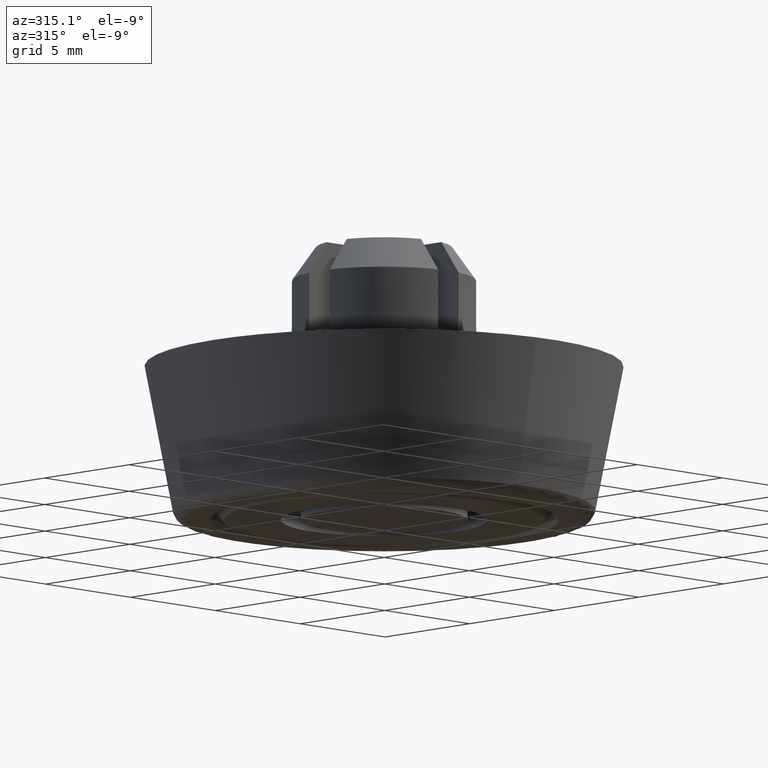
[diagram: clean part render]
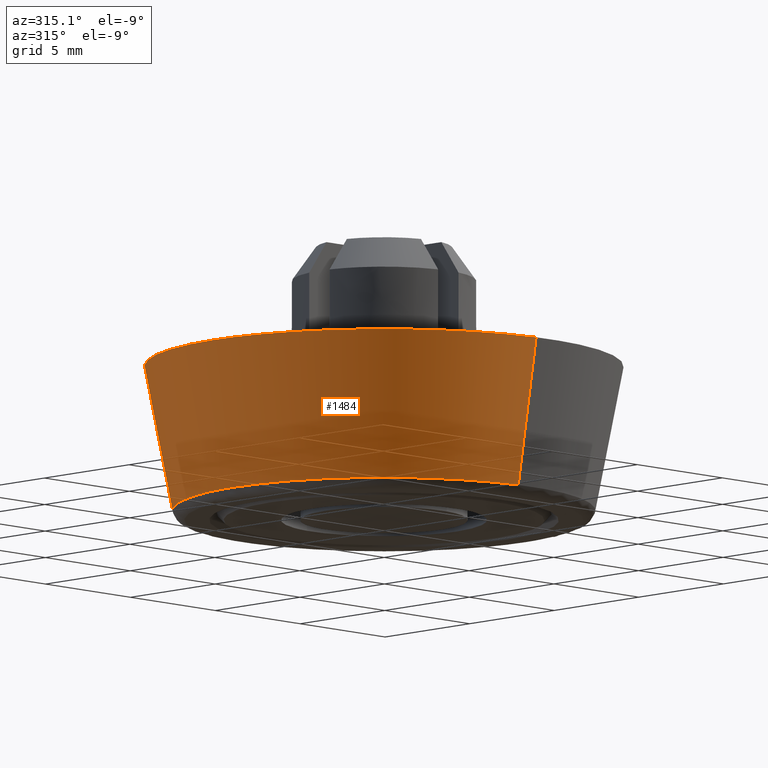
[diagram: same view with one face highlighted and labeled with its STEP entity id]
A machine part, auxiliary view. The second image highlights one B-rep face of the part: STEP entity #1484.
In plain terms, the highlighted face is a freeform B-spline surface patch.
Its self-contained STEP definition (entity closure, byte-faithful):
#1038=CARTESIAN_POINT('',(-8.627317969124565,1.871597676116212,-6.094423741713268));
#1039=VERTEX_POINT('',#1038);
#1053=CARTESIAN_POINT('',(0.846119025916015,8.787352501310256,-6.094427220944507));
#1054=VERTEX_POINT('',#1053);
#1055=CARTESIAN_POINT('',(0.846119025916015,8.787352501310256,-6.094427220944507));
#1056=CARTESIAN_POINT('',(0.424035555022685,8.827994209356424,-6.094427126929500));
#1057=CARTESIAN_POINT('',(-0.000000060517125,8.827994228803613,-6.094427025338519));
#1058=CARTESIAN_POINT('',(-7.118207421188021,8.827994555259972,-6.094425319949531));
#1059=CARTESIAN_POINT('',(-8.627317969124565,1.871597676116212,-6.094423741713268));
#1067=(BOUNDED_CURVE()B_SPLINE_CURVE(2,(#1055,#1056,#1057,#1058,#1059),.UNSPECIFIED.,.F.,.U.)B_SPLINE_CURVE_WITH_KNOTS((3,2,3),(0.466698070071439,0.500000000000000,0.927406517058512),.UNSPECIFIED.)CURVE()GEOMETRIC_REPRESENTATION_ITEM()RATIONAL_B_SPLINE_CURVE((0.963582954274223,0.980492181101048,1.0,0.749631058953771,0.927299386196329))REPRESENTATION_ITEM(''));
#1068=EDGE_CURVE('',#1054,#1039,#1067,.T.);
#1109=CARTESIAN_POINT('',(-0.846119025916016,-8.787352501310256,-6.094427220944506));
#1110=VERTEX_POINT('',#1109);
#1126=CARTESIAN_POINT('',(-8.827994857375360,0.0,-6.094423741647701));
#1127=VERTEX_POINT('',#1126);
#1128=CARTESIAN_POINT('',(-8.827994857375360,0.0,-6.094423741647701));
#1129=CARTESIAN_POINT('',(-8.827994825311265,-8.018791774752364,-6.094425481282729));
#1130=CARTESIAN_POINT('',(-0.846119025916016,-8.787352501310256,-6.094427220944506));
#1138=(BOUNDED_CURVE()B_SPLINE_CURVE(2,(#1128,#1129,#1130),.UNSPECIFIED.,.F.,.U.)B_SPLINE_CURVE_WITH_KNOTS((3,3),(0.0,0.466698070071439),.UNSPECIFIED.)CURVE()GEOMETRIC_REPRESENTATION_ITEM()RATIONAL_B_SPLINE_CURVE((1.0,0.726614600085500,0.963582954274223))REPRESENTATION_ITEM(''));
#1139=EDGE_CURVE('',#1127,#1110,#1138,.T.);
#1141=CARTESIAN_POINT('',(-8.627317969124565,1.871597676116212,-6.094423741713268));
#1142=CARTESIAN_POINT('',(-8.827994857369200,0.946557350420813,-6.094423741680484));
#1143=CARTESIAN_POINT('',(-8.827994857375360,0.0,-6.094423741647701));
#1151=(BOUNDED_CURVE()B_SPLINE_CURVE(2,(#1141,#1142,#1143),.UNSPECIFIED.,.F.,.U.)B_SPLINE_CURVE_WITH_KNOTS((3,3),(0.927406517058512,1.0),.UNSPECIFIED.)CURVE()GEOMETRIC_REPRESENTATION_ITEM()RATIONAL_B_SPLINE_CURVE((0.927299386196329,0.957475722232776,1.0))REPRESENTATION_ITEM(''));
#1152=EDGE_CURVE('',#1039,#1127,#1151,.T.);
#1382=CARTESIAN_POINT('',(0.958456098082454,9.953961979206898,-0.000000734382645));
#1383=VERTEX_POINT('',#1382);
#1384=CARTESIAN_POINT('',(0.846119025916015,8.787352501310256,-6.094427220944507));
#1385=CARTESIAN_POINT('',(0.958456098082454,9.953961979206898,-0.000000734382645));
#1386=QUASI_UNIFORM_CURVE('',1,(#1384,#1385),.UNSPECIFIED.,.F.,.U.);
#1387=EDGE_CURVE('',#1054,#1383,#1386,.T.);
#1404=CARTESIAN_POINT('',(-0.958456098082454,-9.953961979206898,-0.000000734382645));
#1405=VERTEX_POINT('',#1404);
#1421=CARTESIAN_POINT('',(-0.846119025916016,-8.787352501310256,-6.094427220944506));
#1422=CARTESIAN_POINT('',(-0.958456098082454,-9.953961979206898,-0.000000734382645));
#1423=QUASI_UNIFORM_CURVE('',1,(#1421,#1422),.UNSPECIFIED.,.F.,.U.);
#1424=EDGE_CURVE('',#1110,#1405,#1423,.T.);
#1429=CARTESIAN_POINT('',(0.843317517477260,8.758187283637703,-6.246784335256099));
#1430=CARTESIAN_POINT('',(-7.914869766160442,9.601504801114963,-6.246784335256099));
#1431=CARTESIAN_POINT('',(-8.758187283637703,0.843317517477260,-6.246784335256099));
#1432=CARTESIAN_POINT('',(-9.601504801114963,-7.914869766160442,-6.246784335256099));
#1433=CARTESIAN_POINT('',(-0.843317517477260,-8.758187283637703,-6.246784335256099));
#1434=CARTESIAN_POINT('',(0.961336025395364,9.983856351172637,0.156169608381403));
#1435=CARTESIAN_POINT('',(-9.022520325777274,10.945192376568000,0.156169608381403));
#1436=CARTESIAN_POINT('',(-9.983856351172637,0.961336025395364,0.156169608381403));
#1437=CARTESIAN_POINT('',(-10.945192376568000,-9.022520325777274,0.156169608381403));
#1438=CARTESIAN_POINT('',(-0.961336025395364,-9.983856351172637,0.156169608381403));
#1446=(BOUNDED_SURFACE()B_SPLINE_SURFACE(2,1,((#1429,#1434),(#1430,#1435),(#1431,#1436),(#1432,#1437),(#1433,#1438)),.UNSPECIFIED.,.F.,.F.,.U.)B_SPLINE_SURFACE_WITH_KNOTS((3,2,3),(2,2),(0.0,16.618302188512061,33.236604377024122),(0.0,6.520277006053211),.UNSPECIFIED.)GEOMETRIC_REPRESENTATION_ITEM()RATIONAL_B_SPLINE_SURFACE(((1.0,1.0),(0.707106781186548,0.707106781186548),(1.0,1.0),(0.707106781186548,0.707106781186548),(1.0,1.0)))REPRESENTATION_ITEM('')SURFACE());
#1447=ORIENTED_EDGE('',*,*,#1139,.T.);
#1448=ORIENTED_EDGE('',*,*,#1424,.T.);
#1449=CARTESIAN_POINT('',(-10.0,0.0,0.0));
#1450=VERTEX_POINT('',#1449);
#1451=CARTESIAN_POINT('',(-0.958456098082454,-9.953961979206898,-0.000000734382645));
#1452=CARTESIAN_POINT('',(-9.999999993231977,-9.083361690161116,-0.000000367191322));
#1453=CARTESIAN_POINT('',(-10.0,0.0,0.0));
#1461=(BOUNDED_CURVE()B_SPLINE_CURVE(2,(#1451,#1452,#1453),.UNSPECIFIED.,.F.,.U.)B_SPLINE_CURVE_WITH_KNOTS((3,3),(0.766651071044353,1.0),.UNSPECIFIED.)CURVE()GEOMETRIC_REPRESENTATION_ITEM()RATIONAL_B_SPLINE_CURVE((0.963582738823511,0.726614724366036,1.0))REPRESENTATION_ITEM(''));
#1462=EDGE_CURVE('',#1405,#1450,#1461,.T.);
#1463=ORIENTED_EDGE('',*,*,#1462,.T.);
#1464=CARTESIAN_POINT('',(-10.0,0.0,0.0));
#1465=CARTESIAN_POINT('',(-10.000000006147641,9.999999936154222,-0.000000333533162));
#1466=CARTESIAN_POINT('',(-0.000000012915664,9.999999865865508,-0.000000700724484));
#1467=CARTESIAN_POINT('',(0.480333719912017,9.999999862489304,-0.000000718361922));
#1468=CARTESIAN_POINT('',(0.958456098082454,9.953961979206898,-0.000000734382645));
#1476=(BOUNDED_CURVE()B_SPLINE_CURVE(2,(#1464,#1465,#1466,#1467,#1468),.UNSPECIFIED.,.F.,.U.)B_SPLINE_CURVE_WITH_KNOTS((3,2,3),(0.0,0.250000000000000,0.266651071044353),.UNSPECIFIED.)CURVE()GEOMETRIC_REPRESENTATION_ITEM()RATIONAL_B_SPLINE_CURVE((1.0,0.707106781186548,1.0,0.980492056820512,0.963582738823511))REPRESENTATION_ITEM(''));
#1477=EDGE_CURVE('',#1450,#1383,#1476,.T.);
#1478=ORIENTED_EDGE('',*,*,#1477,.T.);
#1479=ORIENTED_EDGE('',*,*,#1387,.F.);
#1480=ORIENTED_EDGE('',*,*,#1068,.T.);
#1481=ORIENTED_EDGE('',*,*,#1152,.T.);
#1482=EDGE_LOOP('',(#1447,#1448,#1463,#1478,#1479,#1480,#1481));
#1483=FACE_OUTER_BOUND('',#1482,.T.);
#1484=ADVANCED_FACE('',(#1483),#1446,.T.);